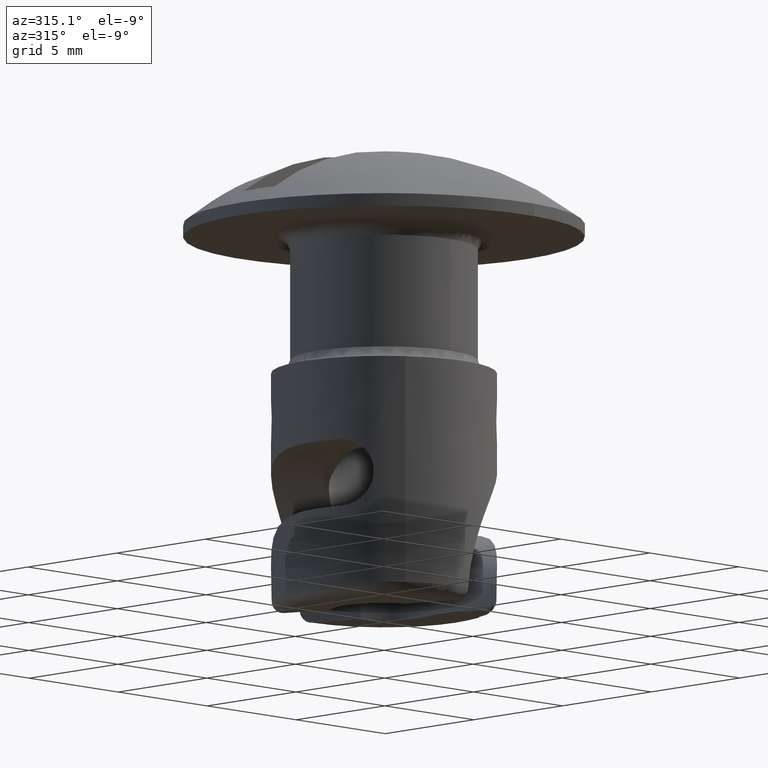
[diagram: clean part render]
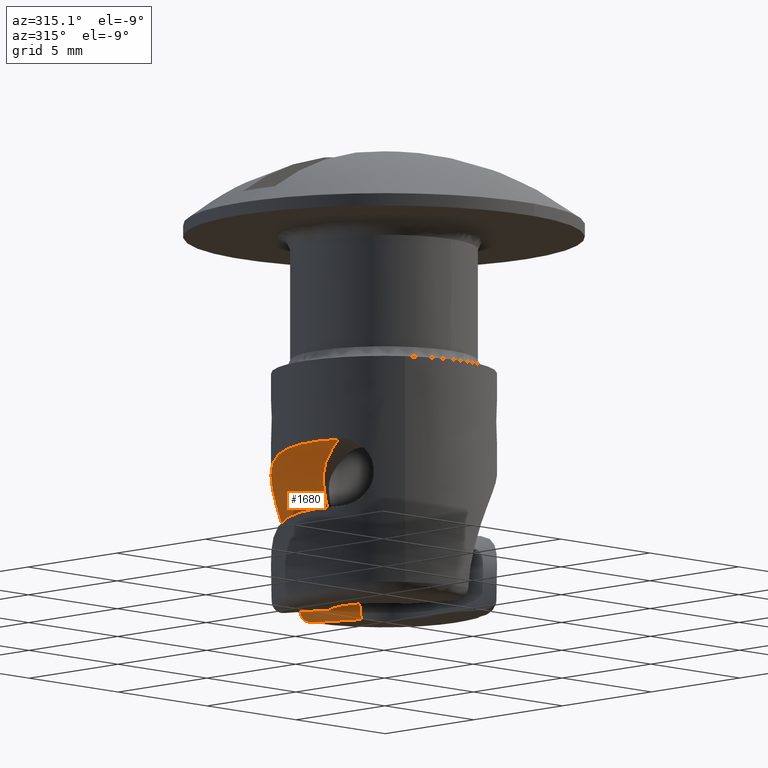
[diagram: same view with one face highlighted and labeled with its STEP entity id]
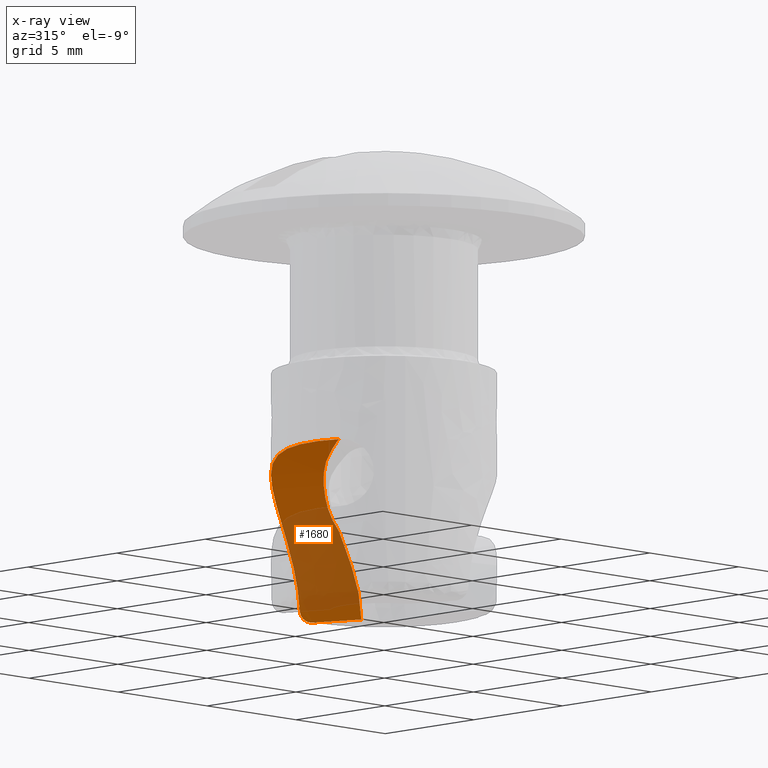
[diagram: x-ray of the same camera — body ghosted, the highlighted face saturated]
A machine part, auxiliary view. The second image highlights one B-rep face of the part: STEP entity #1680.
The next image is the same camera in x-ray: the body ghosted, the highlighted face saturated — about 56% of this face is hidden behind the body in this view.
In plain terms, the highlighted face is a freeform B-spline surface patch.
Its self-contained STEP definition (entity closure, byte-faithful):
#952=CARTESIAN_POINT('',(-0.375948042502890,2.167639976873065,-11.656073353014859));
#953=VERTEX_POINT('',#952);
#983=CARTESIAN_POINT('',(-4.157457896922624,-1.722075444141715,-8.800000000000001));
#984=VERTEX_POINT('',#983);
#1006=CARTESIAN_POINT('',(-0.375948042502890,2.167639976873065,-11.656073353014859));
#1007=CARTESIAN_POINT('',(-0.418357113072767,2.178000942347995,-11.602977940416560));
#1008=CARTESIAN_POINT('',(-0.503883731222801,2.198895961407185,-11.495900114428100));
#1009=CARTESIAN_POINT('',(-0.635001853235087,2.205361901529213,-11.331328913709330));
#1010=CARTESIAN_POINT('',(-0.769662334689068,2.193663706807104,-11.163761069867039));
#1011=CARTESIAN_POINT('',(-0.908540696484519,2.161751085627621,-10.993651876292660));
#1012=CARTESIAN_POINT('',(-1.052117071183507,2.109957932138584,-10.821915238382619));
#1013=CARTESIAN_POINT('',(-1.200905503913601,2.037957999780903,-10.649416019944210));
#1014=CARTESIAN_POINT('',(-1.355385685686515,1.945630474544045,-10.477117961289450));
#1015=CARTESIAN_POINT('',(-1.515983959125018,1.832761272024191,-10.306048769814250));
#1016=CARTESIAN_POINT('',(-1.785227206148122,1.617932152524317,-10.034311213492380));
#1017=CARTESIAN_POINT('',(-2.165571230952485,1.247708380913918,-9.693133659607112));
#1018=CARTESIAN_POINT('',(-2.590026488262823,0.743129292045091,-9.384981336065412));
#1019=CARTESIAN_POINT('',(-2.994250937191601,0.133862014799270,-9.136127686037927));
#1020=CARTESIAN_POINT('',(-3.319568467262106,-0.379722201161052,-8.987261833079005));
#1021=CARTESIAN_POINT('',(-3.612942599932783,-0.833805114440163,-8.894682782543365));
#1022=CARTESIAN_POINT('',(-3.772956741675645,-1.069668731959372,-8.856844291556715));
#1023=CARTESIAN_POINT('',(-3.889730718539469,-1.237152975859079,-8.835093892870688));
#1024=CARTESIAN_POINT('',(-3.970385228481693,-1.350750203714574,-8.822462779582716));
#1025=CARTESIAN_POINT('',(-4.043191723648056,-1.456243209030416,-8.812961423422882));
#1026=CARTESIAN_POINT('',(-4.101174676974370,-1.548786554476870,-8.806571227417129));
#1027=CARTESIAN_POINT('',(-4.138067530230805,-1.622381946610512,-8.802823055009636));
#1028=CARTESIAN_POINT('',(-4.162278616748715,-1.678281989627935,-8.800580801669069));
#1029=CARTESIAN_POINT('',(-4.158798577750232,-1.709896133383281,-8.800161525600007));
#1030=CARTESIAN_POINT('',(-4.157457896922624,-1.722075444141715,-8.800000000000001));
#1031=B_SPLINE_CURVE_WITH_KNOTS('',3,(#1006,#1007,#1008,#1009,#1010,#1011,#1012,#1013,#1014,#1015,#1016,#1017,#1018,#1019,#1020,#1021,#1022,#1023,#1024,#1025,#1026,#1027,#1028,#1029,#1030),.UNSPECIFIED.,.F.,.U.,(4,1,1,1,1,1,1,1,1,1,1,1,1,1,1,1,1,1,1,1,1,1,4),(0.0,0.031118713671389,0.062757290026148,0.095160733671347,0.128557216998489,0.163155268107207,0.199142530977013,0.236685822504426,0.275932120127690,0.317010122551958,0.435324082019704,0.560356808059624,0.645036613965392,0.784753924714734,0.843389013596306,0.893476276114472,0.914972720939142,0.936419251311306,0.956833123015054,0.973260771610110,0.985769521151674,0.994517725184134,1.0),.UNSPECIFIED.);
#1032=EDGE_CURVE('',#953,#984,#1031,.T.);
#1547=CARTESIAN_POINT('',(1.426613533905310,0.469171827681481,-15.335787765244030));
#1548=CARTESIAN_POINT('',(-0.382370421550701,4.836445431518872,-15.335787765244030));
#1549=CARTESIAN_POINT('',(1.457393206676976,0.481921185575890,-14.472078673594870));
#1550=CARTESIAN_POINT('',(-0.351590748779035,4.849194789413280,-14.472078673594870));
#1551=CARTESIAN_POINT('',(1.323642480700176,0.426519820955631,-13.610752968320259));
#1552=CARTESIAN_POINT('',(-0.485341474755835,4.793793424793022,-13.610752968320259));
#1553=CARTESIAN_POINT('',(0.743721970959446,0.186308880968020,-12.000037529699100));
#1554=CARTESIAN_POINT('',(-1.065261984496565,4.553582484805411,-12.000037529699100));
#1555=CARTESIAN_POINT('',(0.303755486627580,0.004068796354267,-11.267877313153191));
#1556=CARTESIAN_POINT('',(-1.505228468828431,4.371342400191659,-11.267877313153191));
#1557=CARTESIAN_POINT('',(-0.821447750516337,-0.462005644420867,-10.041049856541120));
#1558=CARTESIAN_POINT('',(-2.630431705972347,3.905267959416525,-10.041049856541120));
#1559=CARTESIAN_POINT('',(-1.494648418236220,-0.740854490904288,-9.559505756520906));
#1560=CARTESIAN_POINT('',(-3.303632373692231,3.626419112933105,-9.559505756520904));
#1561=CARTESIAN_POINT('',(-2.974441368001722,-1.353804799575262,-8.921815130448008));
#1562=CARTESIAN_POINT('',(-4.783425323457732,3.013468804262132,-8.921815130448007));
#1563=CARTESIAN_POINT('',(-3.764586731241974,-1.681093724941340,-8.770674582363865));
#1564=CARTESIAN_POINT('',(-5.573570686697986,2.686179878896053,-8.770674582363863));
#1565=CARTESIAN_POINT('',(-4.558363720105493,-2.009886918892501,-8.795611567334586));
#1566=CARTESIAN_POINT('',(-6.367347675561503,2.357386684944892,-8.795611567334584));
#1567=B_SPLINE_SURFACE_WITH_KNOTS('',1,3,((#1547,#1549,#1551,#1553,#1555,#1557,#1559,#1561,#1563,#1565),(#1548,#1550,#1552,#1554,#1556,#1558,#1560,#1562,#1564,#1566)),.UNSPECIFIED.,.F.,.F.,.U.,(2,2),(4,2,2,2,4),(0.0,4.727102884629457),(0.0,2.593054176915816,5.186108353831632,7.779162530747447,10.358081024574490),.UNSPECIFIED.);
#1568=CARTESIAN_POINT('',(0.772819371805344,2.059793732042790,-15.100000000000000));
#1569=VERTEX_POINT('',#1568);
#1570=CARTESIAN_POINT('',(0.772819371805344,2.059793732042790,-15.100000000000000));
#1571=CARTESIAN_POINT('',(0.773041899165452,2.059710241423274,-14.944620274853120));
#1572=CARTESIAN_POINT('',(0.765888226128066,2.062435596898863,-14.790563030828819));
#1573=CARTESIAN_POINT('',(0.737671211397230,2.072695479358451,-14.484918439545600));
#1574=CARTESIAN_POINT('',(0.716612975564488,2.080217965548671,-14.333329680493280));
#1575=CARTESIAN_POINT('',(0.661533340966563,2.098383801817128,-14.032387078842280));
#1576=CARTESIAN_POINT('',(0.627516545776963,2.109016470042432,-13.883031971909940));
#1577=CARTESIAN_POINT('',(0.547408891333721,2.131213502167934,-13.586306288744231));
#1578=CARTESIAN_POINT('',(0.501120559579245,2.142806256858969,-13.438438384562669));
#1579=CARTESIAN_POINT('',(0.347390708687143,2.174921050103885,-13.003180306983509));
#1580=CARTESIAN_POINT('',(0.225082889736509,2.192841089858122,-12.722818233379231));
#1581=CARTESIAN_POINT('',(-0.051934060297829,2.203750713216720,-12.177973634916480));
#1582=CARTESIAN_POINT('',(-0.206712787133108,2.196991559081186,-11.913527700704501));
#1583=CARTESIAN_POINT('',(-0.375948042502890,2.167639976873065,-11.656073353014859));
#1584=B_SPLINE_CURVE_WITH_KNOTS('',3,(#1570,#1571,#1572,#1573,#1574,#1575,#1576,#1577,#1578,#1579,#1580,#1581,#1582,#1583),.UNSPECIFIED.,.F.,.U.,(4,2,2,2,2,2,4),(0.0,0.125000000000000,0.249999999999999,0.374999999999999,0.499999999999999,0.749999999999999,1.0),.UNSPECIFIED.);
#1585=EDGE_CURVE('',#1569,#953,#1584,.T.);
#1586=ORIENTED_EDGE('',*,*,#1585,.T.);
#1587=ORIENTED_EDGE('',*,*,#1032,.T.);
#1588=CARTESIAN_POINT('',(-0.255835677203764,4.492721681371959,-14.600000000000000));
#1589=VERTEX_POINT('',#1588);
#1590=CARTESIAN_POINT('',(-4.157457896922624,-1.722075444141715,-8.800000000000001));
#1591=CARTESIAN_POINT('',(-4.251216062589120,-1.495723208775260,-8.799999999999979));
#1592=CARTESIAN_POINT('',(-4.325326649337720,-1.264872823841523,-8.800851007371996));
#1593=CARTESIAN_POINT('',(-4.435879545861407,-0.794560594651052,-8.805263631726458));
#1594=CARTESIAN_POINT('',(-4.472319717629077,-0.555098144338448,-8.808815179451765));
#1595=CARTESIAN_POINT('',(-4.493454160107758,-0.250211533345091,-8.817035267498094));
#1596=CARTESIAN_POINT('',(-4.496441321122611,-0.189018176964220,-8.818874299022909));
#1597=CARTESIAN_POINT('',(-4.499910608109136,-0.067208217864782,-8.822978211693446));
#1598=CARTESIAN_POINT('',(-4.500403502731599,-0.006453744390379,-8.825246614146852));
#1599=CARTESIAN_POINT('',(-4.498215553891774,0.175357302639424,-8.832804062756591));
#1600=CARTESIAN_POINT('',(-4.491873542459526,0.295962363728423,-8.838841575488008));
#1601=CARTESIAN_POINT('',(-4.458457111095235,0.655931976116248,-8.860903334236337));
#1602=CARTESIAN_POINT('',(-4.417075366099178,0.893465991198028,-8.880791745068544));
#1603=CARTESIAN_POINT('',(-4.341053789761546,1.186983260664664,-8.916362631454415));
#1604=CARTESIAN_POINT('',(-4.324584262166028,1.245646377100500,-8.924039652869228));
#1605=CARTESIAN_POINT('',(-4.289514754789506,1.361516472834905,-8.940450218961642));
#1606=CARTESIAN_POINT('',(-4.270895997320138,1.418818600312679,-8.949192645497510));
#1607=CARTESIAN_POINT('',(-4.211885803206989,1.588840250880763,-8.977161782224259));
#1608=CARTESIAN_POINT('',(-4.168344113026937,1.699677316651606,-8.998127982068445));
#1609=CARTESIAN_POINT('',(-4.025748507840634,2.024680580488226,-9.069105554553399));
#1610=CARTESIAN_POINT('',(-3.914762934088972,2.231371467004854,-9.127135552052934));
#1611=CARTESIAN_POINT('',(-3.757492278960908,2.476822761001668,-9.217504310707682));
#1612=CARTESIAN_POINT('',(-3.725014745675753,2.525393794597043,-9.236531205186914));
#1613=CARTESIAN_POINT('',(-3.658843130353403,2.620346469602205,-9.276134356132639));
#1614=CARTESIAN_POINT('',(-3.557700555921008,2.759622781892145,-9.337890330806918));
#1615=CARTESIAN_POINT('',(-3.451343327477512,2.889705878700200,-9.406908769455356));
#1616=CARTESIAN_POINT('',(-3.232720566505978,3.138184356752147,-9.555216353308667));
#1617=CARTESIAN_POINT('',(-3.079107008875318,3.288279636576625,-9.667757914625645));
#1618=CARTESIAN_POINT('',(-2.840569715289832,3.491716544578757,-9.859752796447650));
#1619=CARTESIAN_POINT('',(-2.760672080360959,3.555073625901769,-9.926847287525817));
#1620=CARTESIAN_POINT('',(-2.601177665697744,3.673381762401248,-10.066855390058880));
#1621=CARTESIAN_POINT('',(-2.521503282585337,3.728396649026551,-10.139830359444300));
#1622=CARTESIAN_POINT('',(-2.362845596677823,3.830911257497530,-10.291761895372220));
#1623=CARTESIAN_POINT('',(-2.283861416996887,3.878409838195910,-10.370718337967229));
#1624=CARTESIAN_POINT('',(-2.166289854720021,3.944516412261712,-10.493699247509520));
#1625=CARTESIAN_POINT('',(-2.127249978678467,3.965694375120991,-10.535450919425660));
#1626=CARTESIAN_POINT('',(-2.049535418081855,4.006410977256562,-10.620484512940260));
#1627=CARTESIAN_POINT('',(-2.010827586600611,4.025963213338089,-10.663808175120840));
#1628=CARTESIAN_POINT('',(-1.819772981142597,4.119143642564993,-10.882640845504660));
#1629=CARTESIAN_POINT('',(-1.673753559475716,4.179732532768504,-11.065957719102411));
#1630=CARTESIAN_POINT('',(-1.397361509913811,4.280069606204146,-11.448712768605640));
#1631=CARTESIAN_POINT('',(-1.266977319073122,4.319782842846703,-11.648151649386920));
#1632=CARTESIAN_POINT('',(-1.084900248822296,4.367714537856685,-11.959629074385600));
#1633=CARTESIAN_POINT('',(-1.026387320631123,4.381758620768721,-12.065657688789770));
#1634=CARTESIAN_POINT('',(-0.914547893507097,4.406459087874878,-12.281316719575090));
#1635=CARTESIAN_POINT('',(-0.861559024800015,4.417046626034509,-12.390278203963881));
#1636=CARTESIAN_POINT('',(-0.711535639765578,4.444553569533535,-12.720557140326550));
#1637=CARTESIAN_POINT('',(-0.623420161747091,4.457256620977299,-12.945258420271839));
#1638=CARTESIAN_POINT('',(-0.472377638950449,4.475784696512829,-13.403950299390811));
#1639=CARTESIAN_POINT('',(-0.409448335685718,4.481606004893582,-13.637940295660609));
#1640=CARTESIAN_POINT('',(-0.335586674812330,4.487537371918130,-13.996348484905189));
#1641=CARTESIAN_POINT('',(-0.314469430281037,4.489032563460882,-14.116787613999000));
#1642=CARTESIAN_POINT('',(-0.279652654086169,4.491335967332663,-14.357863999543760));
#1643=CARTESIAN_POINT('',(-0.265898739107560,4.492148645595545,-14.478754440721470));
#1644=CARTESIAN_POINT('',(-0.255835677203764,4.492721681371959,-14.600000000000000));
#1645=B_SPLINE_CURVE_WITH_KNOTS('',3,(#1590,#1591,#1592,#1593,#1594,#1595,#1596,#1597,#1598,#1599,#1600,#1601,#1602,#1603,#1604,#1605,#1606,#1607,#1608,#1609,#1610,#1611,#1612,#1613,#1614,#1615,#1616,#1617,#1618,#1619,#1620,#1621,#1622,#1623,#1624,#1625,#1626,#1627,#1628,#1629,#1630,#1631,#1632,#1633,#1634,#1635,#1636,#1637,#1638,#1639,#1640,#1641,#1642,#1643,#1644),.UNSPECIFIED.,.F.,.U.,(4,2,2,2,2,2,2,2,2,2,2,2,1,2,2,2,2,2,2,2,2,2,2,2,2,2,2,4),(0.0,0.062500000000000,0.125000000000001,0.140625000000001,0.156250000000001,0.187500000000001,0.250000000000001,0.265625000000001,0.281250000000001,0.312500000000002,0.375000000000002,0.390625000000002,0.406250000000002,0.437500000000002,0.500000000000002,0.531250000000002,0.562500000000002,0.593750000000002,0.609375000000002,0.625000000000002,0.687500000000002,0.750000000000001,0.781250000000001,0.812500000000001,0.875000000000001,0.937500000000000,0.968750000000000,1.0),.UNSPECIFIED.);
#1646=EDGE_CURVE('',#984,#1589,#1645,.T.);
#1647=ORIENTED_EDGE('',*,*,#1646,.T.);
#1648=CARTESIAN_POINT('',(-0.030791286977417,3.999881485325070,-15.100000000000000));
#1649=VERTEX_POINT('',#1648);
#1650=CARTESIAN_POINT('',(-0.255835677203764,4.492721681371959,-14.600000000000000));
#1651=CARTESIAN_POINT('',(-0.252994784519830,4.492883454514210,-14.634228709476860));
#1652=CARTESIAN_POINT('',(-0.249098204039347,4.489619777298075,-14.667765084831300));
#1653=CARTESIAN_POINT('',(-0.239273137615048,4.476621532452521,-14.733524811676331));
#1654=CARTESIAN_POINT('',(-0.233255437557799,4.466707678603228,-14.766096835535039));
#1655=CARTESIAN_POINT('',(-0.219494394031669,4.441045069627467,-14.827574710866960));
#1656=CARTESIAN_POINT('',(-0.211765500974590,4.425365662892159,-14.856586920983791));
#1657=CARTESIAN_POINT('',(-0.198824569795882,4.397677593459401,-14.897549877140291));
#1658=CARTESIAN_POINT('',(-0.194260459212276,4.387693549381862,-14.910832596126671));
#1659=CARTESIAN_POINT('',(-0.184835555705029,4.366712026077098,-14.936026175337931));
#1660=CARTESIAN_POINT('',(-0.179962766335683,4.355690904373759,-14.947986242169160));
#1661=CARTESIAN_POINT('',(-0.164852847782284,4.321099029849078,-14.982017785988180));
#1662=CARTESIAN_POINT('',(-0.154094852595214,4.295933484567970,-15.002308032155019));
#1663=CARTESIAN_POINT('',(-0.131260464118769,4.241877389090666,-15.037697268582480));
#1664=CARTESIAN_POINT('',(-0.119466997335865,4.213661440715496,-15.052378627561779));
#1665=CARTESIAN_POINT('',(-0.095067859496002,4.155039120186651,-15.076074351253240));
#1666=CARTESIAN_POINT('',(-0.082335389200371,4.124324898593797,-15.085129491477790));
#1667=CARTESIAN_POINT('',(-0.056678608778121,4.062393181831436,-15.097059006772250));
#1668=CARTESIAN_POINT('',(-0.043776522898089,4.031230618026926,-15.100000000000060));
#1669=CARTESIAN_POINT('',(-0.030791286977584,3.999881485325006,-15.100000000000060));
#1670=B_SPLINE_CURVE_WITH_KNOTS('',3,(#1650,#1651,#1652,#1653,#1654,#1655,#1656,#1657,#1658,#1659,#1660,#1661,#1662,#1663,#1664,#1665,#1666,#1667,#1668,#1669),.UNSPECIFIED.,.F.,.U.,(4,2,2,2,2,2,2,2,2,4),(0.0,0.125000000000003,0.250000000000006,0.375000000000010,0.437500000000011,0.500000000000013,0.625000000000010,0.750000000000006,0.875000000000003,1.0),.UNSPECIFIED.);
#1671=EDGE_CURVE('',#1589,#1649,#1670,.T.);
#1672=ORIENTED_EDGE('',*,*,#1671,.T.);
#1673=CARTESIAN_POINT('',(0.772819371805344,2.059793732042790,-15.100000000000000));
#1674=CARTESIAN_POINT('',(-0.030791286977417,3.999881485325070,-15.100000000000000));
#1675=QUASI_UNIFORM_CURVE('',1,(#1673,#1674),.UNSPECIFIED.,.F.,.U.);
#1676=EDGE_CURVE('',#1569,#1649,#1675,.T.);
#1677=ORIENTED_EDGE('',*,*,#1676,.F.);
#1678=EDGE_LOOP('',(#1586,#1587,#1647,#1672,#1677));
#1679=FACE_OUTER_BOUND('',#1678,.T.);
#1680=ADVANCED_FACE('',(#1679),#1567,.F.);